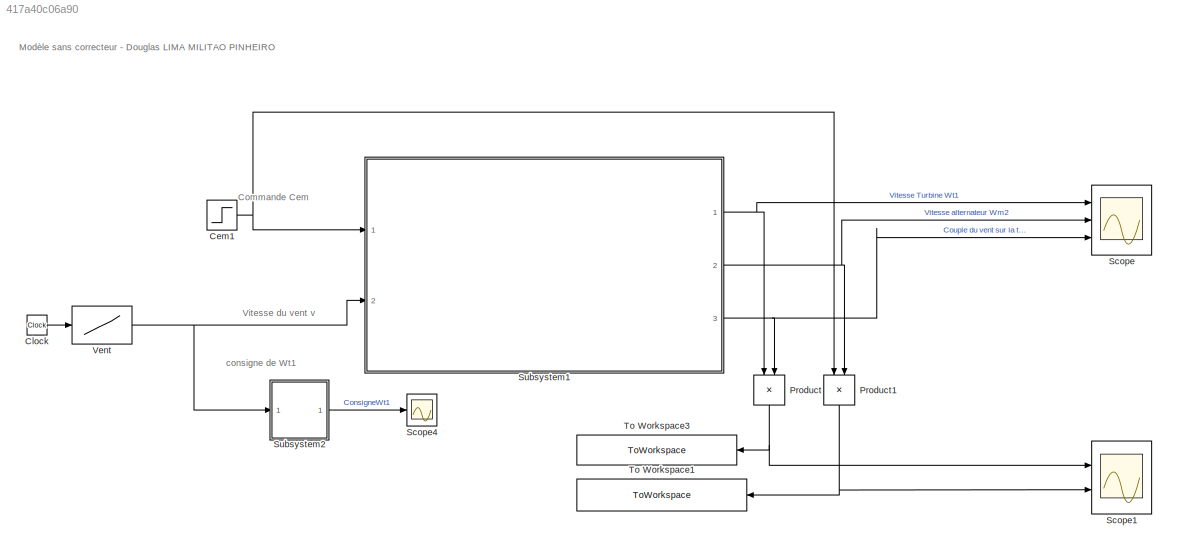
MODEL slx_417a40c06a90
KIND model
CONFIG AbsTol = auto
CONFIG EnableMultiTasking = on
CONFIG FixedStep = auto
CONFIG MaxStep = auto
CONFIG MinStep = auto
CONFIG RelTol = 1e-4
CONFIG SampleTimeConstraint = Unconstrained
CONFIG Solver = ode45
CONFIG SolverName = ode45
CONFIG StartTime = 0.0
CONFIG StopTime = 8
BLOCK [Step] Cem1
  After = 1000
  SampleTime = 0
  Time = 2
BLOCK [Clock] Clock
BLOCK [Product] Product
  Ports = [2, 1]
BLOCK [Product] Product1
  Ports = [2, 1]
BLOCK [Scope] Scope
  Floating = off
  NumInputPorts = 3
  Ports = [3]
  ScopeSpecificationString = Simulink.scopes.TimeScopeBlockCfg('CurrentConfiguration', extmgr.ConfigurationSet(extmgr.Configuration('Core','General UI',true),extmgr.Configuration('Core','Source UI',true),extmgr.Configuration('Sources','WiredSimulink',true),extmgr.Configuration('Visuals','Time Domain',true,'SerializedDisplays',{struct('MinYLimReal','-1.60499','MaxYLimReal','14.44485','YLabelReal','','MinYLimMag','0.00000','Max...<+2773ch>
BLOCK [Scope] Scope1
  Floating = off
  NumInputPorts = 2
  Ports = [2]
  ScopeSpecificationString = Simulink.scopes.TimeScopeBlockCfg('CurrentConfiguration', extmgr.ConfigurationSet(extmgr.Configuration('Core','General UI',true),extmgr.Configuration('Core','Source UI',true),extmgr.Configuration('Sources','WiredSimulink',true,'DataLoggingVariableName','ScopeData1'),extmgr.Configuration('Visuals','Time Domain',true,'SerializedDisplays',{struct('MinYLimReal','-48193.76664','MaxYLimReal','433743.899...<+1555ch>
BLOCK [Scope] Scope4
  Floating = off
  NumInputPorts = 1
  Ports = [1]
  ScopeSpecificationString = Simulink.scopes.TimeScopeBlockCfg('CurrentConfiguration', extmgr.ConfigurationSet(extmgr.Configuration('Core','General UI',true),extmgr.Configuration('Core','Source UI',true),extmgr.Configuration('Sources','WiredSimulink',true,'DataLoggingVariableName','ScopeData3'),extmgr.Configuration('Visuals','Time Domain',true),extmgr.Configuration('Tools','Plot Navigation',true),extmgr.Configuration('Tools',...<+40ch>
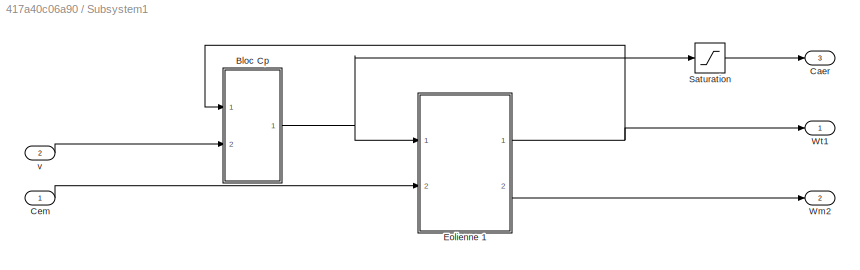
BLOCK [SubSystem] Subsystem1
  Ports = [2, 3]
  RequestExecContextInheritance = off
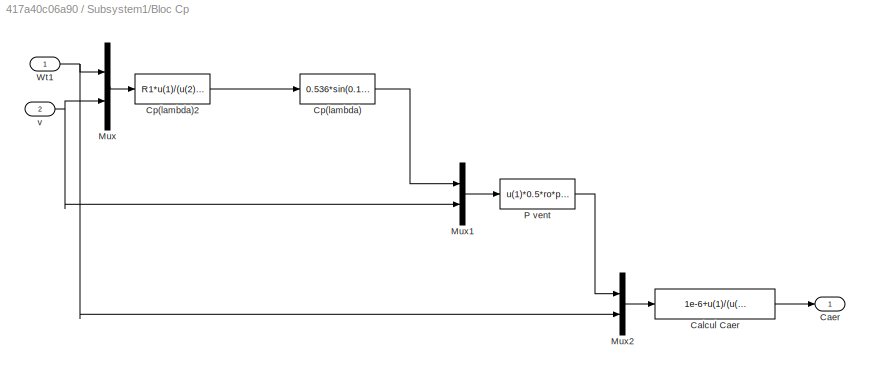
BLOCK [SubSystem] Subsystem1/Bloc Cp
  Ports = [2, 1]
  RequestExecContextInheritance = off
BLOCK [Outport] Subsystem1/Bloc Cp/Caer
BLOCK [Fcn] Subsystem1/Bloc Cp/Calcul  Caer
  Expr = 1e-6+u(1)/(u(2)+1e-6)
BLOCK [Fcn] Subsystem1/Bloc Cp/Cp(lambda)
  Expr = 0.536*sin(0.1836*u(1))-0.004*u(1)
BLOCK [Fcn] Subsystem1/Bloc Cp/Cp(lambda)2
  Expr = R1*u(1)/(u(2)+1e-6)
BLOCK [Mux] Subsystem1/Bloc Cp/Mux
  DisplayOption = bar
  Inputs = 2
  Ports = [2, 1]
BLOCK [Mux] Subsystem1/Bloc Cp/Mux1
  DisplayOption = bar
  Inputs = 2
  Ports = [2, 1]
BLOCK [Mux] Subsystem1/Bloc Cp/Mux2
  DisplayOption = bar
  Inputs = 2
  Ports = [2, 1]
BLOCK [Fcn] Subsystem1/Bloc Cp/P vent
  Expr = u(1)*0.5*ro*pi*R1^2*u(2)^3
BLOCK [Inport] Subsystem1/Bloc Cp/Wt1
BLOCK [Inport] Subsystem1/Bloc Cp/v
  Port = 2
BLOCK [Outport] Subsystem1/Caer
  Port = 3
BLOCK [Inport] Subsystem1/Cem
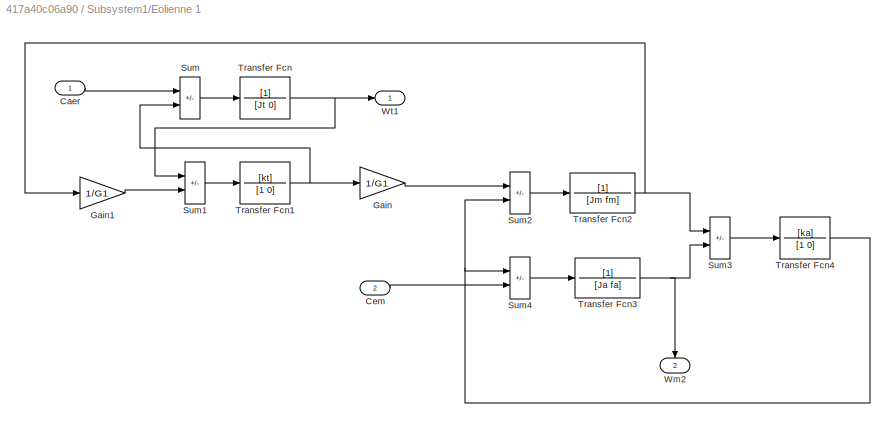
BLOCK [SubSystem] Subsystem1/Eolienne 1
  Ports = [2, 2]
  RequestExecContextInheritance = off
BLOCK [Inport] Subsystem1/Eolienne 1/Caer
BLOCK [Inport] Subsystem1/Eolienne 1/Cem
  Port = 2
BLOCK [Gain] Subsystem1/Eolienne 1/Gain
  Gain = 1/G1
  OutDataTypeStr = Inherit: Same as input
  ParamDataTypeStr = Inherit: Same as input
  SaturateOnIntegerOverflow = on
BLOCK [Gain] Subsystem1/Eolienne 1/Gain1
  Gain = 1/G1
  OutDataTypeStr = Inherit: Same as input
  ParamDataTypeStr = Inherit: Same as input
  SaturateOnIntegerOverflow = on
BLOCK [Sum] Subsystem1/Eolienne 1/Sum
  IconShape = rectangular
  Inputs = +-
  Ports = [2, 1]
  SaturateOnIntegerOverflow = on
BLOCK [Sum] Subsystem1/Eolienne 1/Sum1
  IconShape = rectangular
  Inputs = +-
  Ports = [2, 1]
  SaturateOnIntegerOverflow = on
BLOCK [Sum] Subsystem1/Eolienne 1/Sum2
  IconShape = rectangular
  Inputs = +-
  Ports = [2, 1]
  SaturateOnIntegerOverflow = on
BLOCK [Sum] Subsystem1/Eolienne 1/Sum3
  IconShape = rectangular
  Inputs = +-
  Ports = [2, 1]
  SaturateOnIntegerOverflow = on
BLOCK [Sum] Subsystem1/Eolienne 1/Sum4
  IconShape = rectangular
  Inputs = +-
  Ports = [2, 1]
  SaturateOnIntegerOverflow = on
BLOCK [TransferFcn] Subsystem1/Eolienne 1/Transfer Fcn
  Denominator = [Jt 0]
BLOCK [TransferFcn] Subsystem1/Eolienne 1/Transfer Fcn1
  Denominator = [1 0]
  Numerator = [kt]
BLOCK [TransferFcn] Subsystem1/Eolienne 1/Transfer Fcn2
  Denominator = [Jm fm]
BLOCK [TransferFcn] Subsystem1/Eolienne 1/Transfer Fcn3
  Denominator = [Ja fa]
BLOCK [TransferFcn] Subsystem1/Eolienne 1/Transfer Fcn4
  Denominator = [1 0]
  Numerator = [ka]
BLOCK [Outport] Subsystem1/Eolienne 1/Wm2
  Port = 2
BLOCK [Outport] Subsystem1/Eolienne 1/Wt1
BLOCK [Saturate] Subsystem1/Saturation
  LowerLimit = -50e3
  UpperLimit = 50e3
BLOCK [Outport] Subsystem1/Wm2
  Port = 2
BLOCK [Outport] Subsystem1/Wt1
BLOCK [Inport] Subsystem1/v
  Port = 2
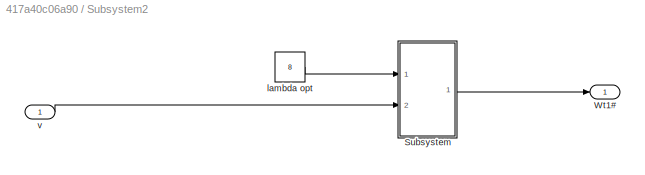
BLOCK [SubSystem] Subsystem2
  Ports = [1, 1]
  RequestExecContextInheritance = off
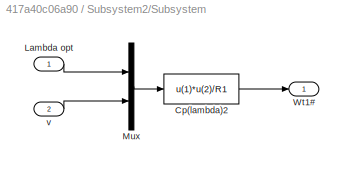
BLOCK [SubSystem] Subsystem2/Subsystem
  Ports = [2, 1]
  RequestExecContextInheritance = off
BLOCK [Fcn] Subsystem2/Subsystem/Cp(lambda)2
  Expr = u(1)*u(2)/R1
BLOCK [Inport] Subsystem2/Subsystem/Lambda opt
BLOCK [Mux] Subsystem2/Subsystem/Mux
  DisplayOption = bar
  Inputs = 2
  Ports = [2, 1]
BLOCK [Outport] Subsystem2/Subsystem/Wt1#
BLOCK [Inport] Subsystem2/Subsystem/v
  Port = 2
BLOCK [Outport] Subsystem2/Wt1#
BLOCK [Constant] Subsystem2/lambda opt
  Value = 8
BLOCK [Inport] Subsystem2/v
BLOCK [ToWorkspace] To Workspace1
  FixptAsFi = on
  MaxDataPoints = inf
  Ports = [1]
  SampleTime = tsim
  VariableName = PuissanceProduit_sansCorrecteur
BLOCK [ToWorkspace] To Workspace3
  FixptAsFi = on
  MaxDataPoints = inf
  Ports = [1]
  SampleTime = tsim
  VariableName = PuissanceVentaTurbine_sansCorrecteur
BLOCK [Lookup] Vent
  InputValues = [0 0.1 0.6 1.5 2 4.5 5  6  8]
  Table = [0 0 5 5 14 14 10 10 10]
ANNOTATION (root): Vitesse du vent v
ANNOTATION (root): Modèle sans correcteur - Douglas LIMA MILITAO PINHEIRO
ANNOTATION (root): Commande Cem
ANNOTATION (root): consigne de Wt1
NET Cem1:1 -> Product1:1, Subsystem1:1
LINE Clock:1 -> Vent:1
NET Product1:1 -> Scope1:2, To Workspace1:1
NET Product:1 -> Scope1:1, To Workspace3:1
LINE Subsystem1/Bloc Cp/Calcul  Caer:1 -> Subsystem1/Bloc Cp/Caer:1
LINE Subsystem1/Bloc Cp/Cp(lambda)2:1 -> Subsystem1/Bloc Cp/Cp(lambda):1
LINE Subsystem1/Bloc Cp/Cp(lambda):1 -> Subsystem1/Bloc Cp/Mux1:1
LINE Subsystem1/Bloc Cp/Mux1:1 -> Subsystem1/Bloc Cp/P vent:1
LINE Subsystem1/Bloc Cp/Mux2:1 -> Subsystem1/Bloc Cp/Calcul  Caer:1
LINE Subsystem1/Bloc Cp/Mux:1 -> Subsystem1/Bloc Cp/Cp(lambda)2:1
LINE Subsystem1/Bloc Cp/P vent:1 -> Subsystem1/Bloc Cp/Mux2:1
NET Subsystem1/Bloc Cp/Wt1:1 -> Subsystem1/Bloc Cp/Mux2:2, Subsystem1/Bloc Cp/Mux:1
NET Subsystem1/Bloc Cp/v:1 -> Subsystem1/Bloc Cp/Mux1:2, Subsystem1/Bloc Cp/Mux:2
NET Subsystem1/Bloc Cp:1 -> Subsystem1/Eolienne 1:1, Subsystem1/Saturation:1
LINE Subsystem1/Cem:1 -> Subsystem1/Eolienne 1:2
LINE Subsystem1/Eolienne 1/Caer:1 -> Subsystem1/Eolienne 1/Sum:1
LINE Subsystem1/Eolienne 1/Cem:1 -> Subsystem1/Eolienne 1/Sum4:2
LINE Subsystem1/Eolienne 1/Gain1:1 -> Subsystem1/Eolienne 1/Sum1:2
LINE Subsystem1/Eolienne 1/Gain:1 -> Subsystem1/Eolienne 1/Sum2:1
LINE Subsystem1/Eolienne 1/Sum1:1 -> Subsystem1/Eolienne 1/Transfer Fcn1:1
LINE Subsystem1/Eolienne 1/Sum2:1 -> Subsystem1/Eolienne 1/Transfer Fcn2:1
LINE Subsystem1/Eolienne 1/Sum3:1 -> Subsystem1/Eolienne 1/Transfer Fcn4:1
LINE Subsystem1/Eolienne 1/Sum4:1 -> Subsystem1/Eolienne 1/Transfer Fcn3:1
LINE Subsystem1/Eolienne 1/Sum:1 -> Subsystem1/Eolienne 1/Transfer Fcn:1
NET Subsystem1/Eolienne 1/Transfer Fcn1:1 -> Subsystem1/Eolienne 1/Gain:1, Subsystem1/Eolienne 1/Sum:2
NET Subsystem1/Eolienne 1/Transfer Fcn2:1 -> Subsystem1/Eolienne 1/Gain1:1, Subsystem1/Eolienne 1/Sum3:1
NET Subsystem1/Eolienne 1/Transfer Fcn3:1 -> Subsystem1/Eolienne 1/Sum3:2, Subsystem1/Eolienne 1/Wm2:1
NET Subsystem1/Eolienne 1/Transfer Fcn4:1 -> Subsystem1/Eolienne 1/Sum2:2, Subsystem1/Eolienne 1/Sum4:1
NET Subsystem1/Eolienne 1/Transfer Fcn:1 -> Subsystem1/Eolienne 1/Sum1:1, Subsystem1/Eolienne 1/Wt1:1
NET Subsystem1/Eolienne 1:1 -> Subsystem1/Bloc Cp:1, Subsystem1/Wt1:1
LINE Subsystem1/Eolienne 1:2 -> Subsystem1/Wm2:1
LINE Subsystem1/Saturation:1 -> Subsystem1/Caer:1
LINE Subsystem1/v:1 -> Subsystem1/Bloc Cp:2
NET Subsystem1:1 -> Product:1, Scope:1
NET Subsystem1:2 -> Product1:2, Scope:2
NET Subsystem1:3 -> Product:2, Scope:3
LINE Subsystem2/Subsystem/Cp(lambda)2:1 -> Subsystem2/Subsystem/Wt1#:1
LINE Subsystem2/Subsystem/Lambda opt:1 -> Subsystem2/Subsystem/Mux:1
LINE Subsystem2/Subsystem/Mux:1 -> Subsystem2/Subsystem/Cp(lambda)2:1
LINE Subsystem2/Subsystem/v:1 -> Subsystem2/Subsystem/Mux:2
LINE Subsystem2/Subsystem:1 -> Subsystem2/Wt1#:1
LINE Subsystem2/lambda opt:1 -> Subsystem2/Subsystem:1
LINE Subsystem2/v:1 -> Subsystem2/Subsystem:2
LINE Subsystem2:1 -> Scope4:1
NET Vent:1 -> Subsystem1:2, Subsystem2:1
note: NET lines group one-source signal fan-out (src -> all destinations, sorted); 1:1 wires keep LINE
